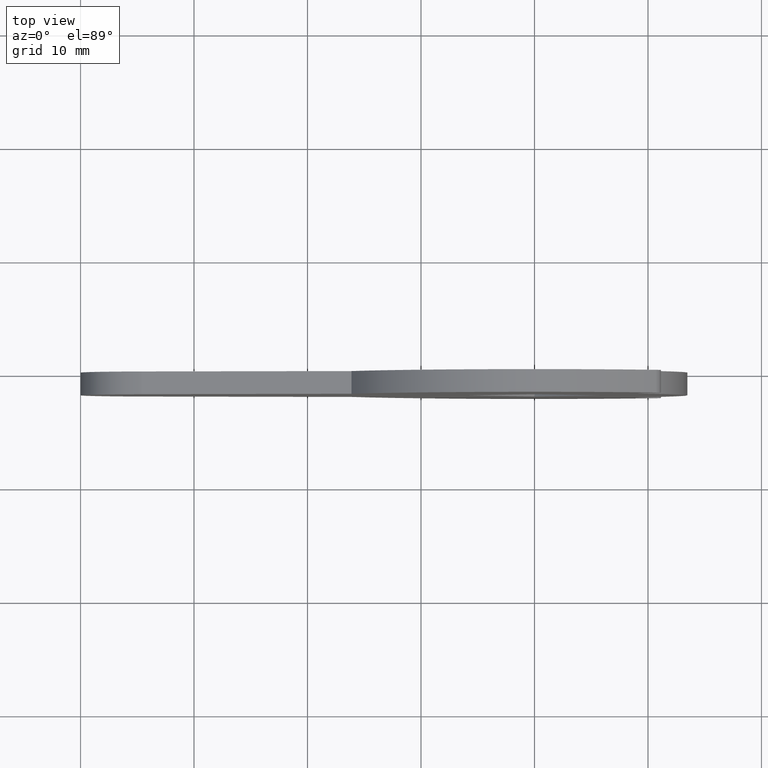
[diagram: clean part render]
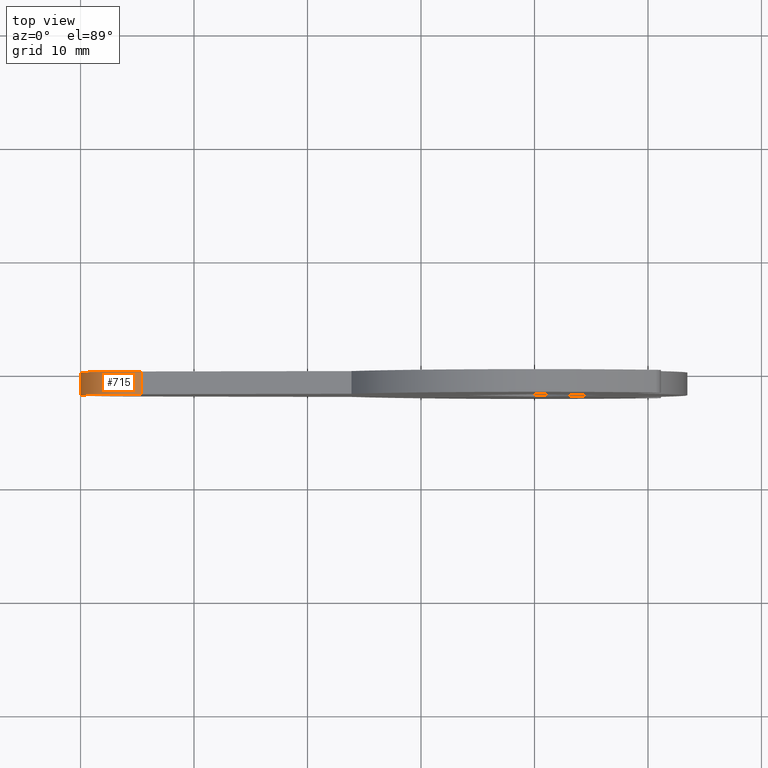
[diagram: same view with one face highlighted and labeled with its STEP entity id]
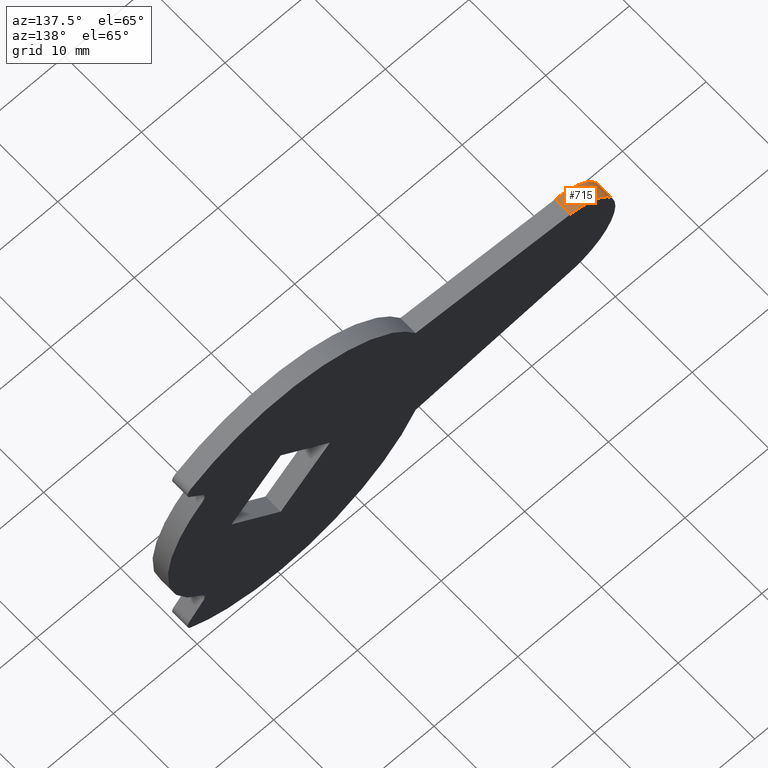
[diagram: same view with one face highlighted and labeled with its STEP entity id]
A machine part, top view. The second image highlights one B-rep face of the part: STEP entity #715.
A second angle (auxiliary view) of the same face is appended — the face is thin or edge-on in the first view.
In plain terms, the highlighted face is a freeform B-spline surface patch.
Its self-contained STEP definition (entity closure, byte-faithful):
#51=CARTESIAN_POINT('',(-34.633145301659049,0.0,5.966479173588591));
#52=VERTEX_POINT('',#51);
#187=CARTESIAN_POINT('',(-34.633145301716652,0.0,-5.966479173582481));
#188=VERTEX_POINT('',#187);
#194=CARTESIAN_POINT('',(-34.633145301659049,0.0,5.966479173588592));
#195=CARTESIAN_POINT('',(-39.999799999973945,0.0,5.396805595601411));
#196=CARTESIAN_POINT('',(-39.999799999999993,0.0,2.896253E-011));
#197=CARTESIAN_POINT('',(-39.999800000026049,0.0,-5.396805595543485));
#198=CARTESIAN_POINT('',(-34.633145301716652,0.0,-5.966479173582478));
#206=(BOUNDED_CURVE()B_SPLINE_CURVE(2,(#194,#195,#196,#197,#198),.UNSPECIFIED.,.F.,.U.)B_SPLINE_CURVE_WITH_KNOTS((3,2,3),(0.0,0.500000000000000,1.0),.UNSPECIFIED.)CURVE()GEOMETRIC_REPRESENTATION_ITEM()RATIONAL_B_SPLINE_CURVE((1.0,0.743490938169830,1.0,0.743490938169830,1.0))REPRESENTATION_ITEM(''));
#207=EDGE_CURVE('',#52,#188,#206,.T.);
#249=CARTESIAN_POINT('',(-34.633145301659049,-2.0,5.966479173588591));
#250=VERTEX_POINT('',#249);
#256=CARTESIAN_POINT('',(-34.633145301716652,-2.0,-5.966479173582481));
#257=VERTEX_POINT('',#256);
#258=CARTESIAN_POINT('',(-34.633145301659049,-2.0,5.966479173588592));
#259=CARTESIAN_POINT('',(-39.999799999973945,-2.000000000000000,5.396805595601411));
#260=CARTESIAN_POINT('',(-39.999799999999993,-2.0,2.896253E-011));
#261=CARTESIAN_POINT('',(-39.999800000026049,-2.000000000000000,-5.396805595543485));
#262=CARTESIAN_POINT('',(-34.633145301716652,-2.0,-5.966479173582478));
#270=(BOUNDED_CURVE()B_SPLINE_CURVE(2,(#258,#259,#260,#261,#262),.UNSPECIFIED.,.F.,.U.)B_SPLINE_CURVE_WITH_KNOTS((3,2,3),(0.0,0.500000000000000,1.0),.UNSPECIFIED.)CURVE()GEOMETRIC_REPRESENTATION_ITEM()RATIONAL_B_SPLINE_CURVE((1.0,0.743490938169830,1.0,0.743490938169830,1.0))REPRESENTATION_ITEM(''));
#271=EDGE_CURVE('',#250,#257,#270,.T.);
#679=CARTESIAN_POINT('',(-34.633145301716652,-2.0,-5.966479173582481));
#680=CARTESIAN_POINT('',(-34.633145301716652,0.0,-5.966479173582481));
#681=QUASI_UNIFORM_CURVE('',1,(#679,#680),.UNSPECIFIED.,.F.,.U.);
#682=EDGE_CURVE('',#257,#188,#681,.T.);
#687=CARTESIAN_POINT('',(-34.581054493502023,-2.050000000000000,5.971778898601630));
#688=CARTESIAN_POINT('',(-34.581054493502023,0.051250000000000,5.971778898601630));
#689=CARTESIAN_POINT('',(-40.101310125654486,-2.049999999999999,5.434472771574752));
#690=CARTESIAN_POINT('',(-40.101310125654486,0.051250000000000,5.434472771574752));
#691=CARTESIAN_POINT('',(-39.998774599185602,-2.050000000000000,-0.110922307611528));
#692=CARTESIAN_POINT('',(-39.998774599185602,0.051250000000000,-0.110922307611528));
#693=CARTESIAN_POINT('',(-39.896239072716710,-2.049999999999999,-5.656317386797799));
#694=CARTESIAN_POINT('',(-39.896239072716710,0.051250000000000,-5.656317386797799));
#695=CARTESIAN_POINT('',(-34.359893751190803,-2.050000000000000,-5.989184626504116));
#696=CARTESIAN_POINT('',(-34.359893751190803,0.051250000000000,-5.989184626504116));
#704=(BOUNDED_SURFACE()B_SPLINE_SURFACE(1,2,((#687,#689,#691,#693,#695),(#688,#690,#692,#694,#696)),.UNSPECIFIED.,.F.,.F.,.U.)B_SPLINE_SURFACE_WITH_KNOTS((2,2),(3,2,3),(0.0,2.101250000000000),(0.0,9.393418931114168,18.786837862228339),.UNSPECIFIED.)GEOMETRIC_REPRESENTATION_ITEM()RATIONAL_B_SPLINE_SURFACE(((1.0,0.734322509435686,1.0,0.734322509435686,1.0),(1.0,0.734322509435686,1.0,0.734322509435686,1.0)))REPRESENTATION_ITEM('')SURFACE());
#705=ORIENTED_EDGE('',*,*,#207,.T.);
#706=ORIENTED_EDGE('',*,*,#682,.F.);
#707=ORIENTED_EDGE('',*,*,#271,.F.);
#708=CARTESIAN_POINT('',(-34.633145301659049,-2.0,5.966479173588591));
#709=CARTESIAN_POINT('',(-34.633145301659049,0.0,5.966479173588591));
#710=QUASI_UNIFORM_CURVE('',1,(#708,#709),.UNSPECIFIED.,.F.,.U.);
#711=EDGE_CURVE('',#250,#52,#710,.T.);
#712=ORIENTED_EDGE('',*,*,#711,.T.);
#713=EDGE_LOOP('',(#705,#706,#707,#712));
#714=FACE_OUTER_BOUND('',#713,.T.);
#715=ADVANCED_FACE('',(#714),#704,.T.);